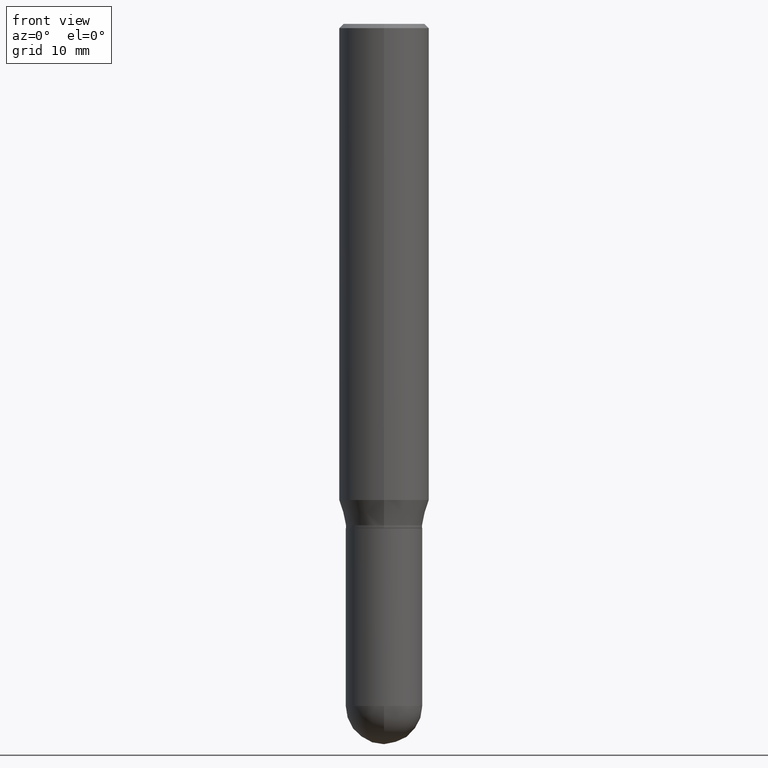
[diagram: clean part render]
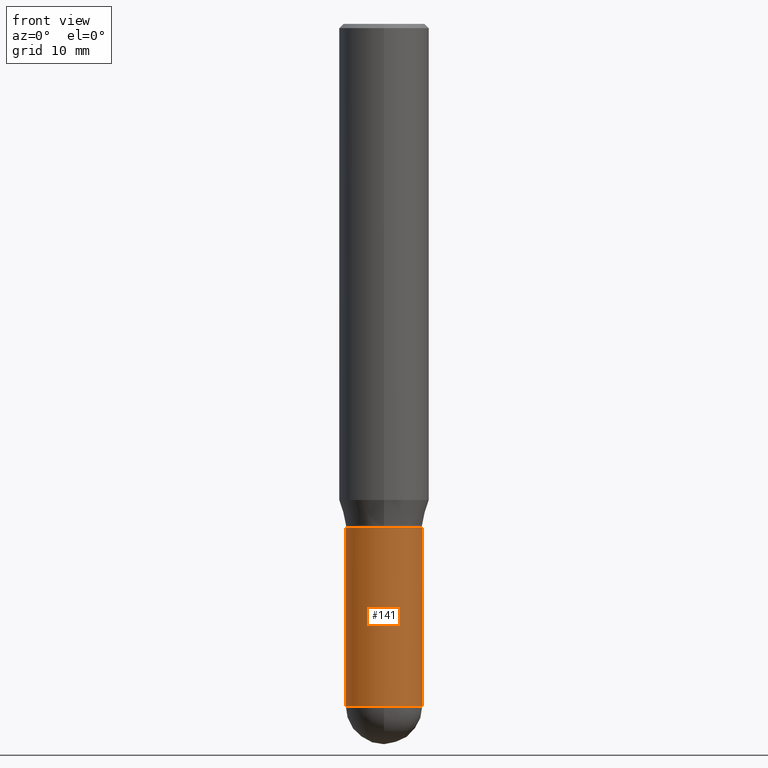
[diagram: same view with one face highlighted and labeled with its STEP entity id]
A machine part, front view. The second image highlights one B-rep face of the part: STEP entity #141.
In plain terms, the highlighted cylindrical surface (partial cylindrical patch) has radius 3.3731 mm, axis along (-0, 0, 1).
Its self-contained STEP definition (entity closure, byte-faithful):
#4 = CARTESIAN_POINT ( 'NONE',  ( 0.1328000000000000014, -7.037429786572241288E-15, -1.750000000000000222 ) ) ;
#11 = VERTEX_POINT ( 'NONE', #184 ) ;
#22 = VERTEX_POINT ( 'NONE', #457 ) ;
#25 = EDGE_LOOP ( 'NONE', ( #143, #358, #301, #480, #168 ) ) ;
#27 = AXIS2_PLACEMENT_3D ( 'NONE', #312, #382, #81 ) ;
#28 = EDGE_CURVE ( 'NONE', #219, #22, #340, .T. ) ;
#30 = DIRECTION ( 'NONE',  ( -2.445468806185136597E-29, 3.491481338843145583E-15, 1.000000000000000000 ) ) ;
#46 = DIRECTION ( 'NONE',  ( -2.445468806185136597E-29, 3.491481338843145583E-15, 1.000000000000000000 ) ) ;
#48 = CARTESIAN_POINT ( 'NONE',  ( 0.1328000000000000014, -9.273374435967362223E-16, 6.475562758257002307E-30 ) ) ;
#50 = CARTESIAN_POINT ( 'NONE',  ( -0.1328000000000000014, -6.243962731053086807E-15, -2.367199999999999971 ) ) ;
#69 = AXIS2_PLACEMENT_3D ( 'NONE', #123, #46, #82 ) ;
#75 = CARTESIAN_POINT ( 'NONE',  ( -0.1328000000000000014, 9.436007530894130566E-16, -6.532345799858513932E-30 ) ) ;
#78 = CIRCLE ( 'NONE', #181, 0.1328000000000000014 ) ;
#81 = DIRECTION ( 'NONE',  ( 1.000000000000000000, -6.982962677686266711E-15, 4.876176775795935232E-29 ) ) ;
#82 = DIRECTION ( 'NONE',  ( 1.000000000000000000, -6.982962677686263555E-15, 0.000000000000000000 ) ) ;
#123 = CARTESIAN_POINT ( 'NONE',  ( 4.279570410823989044E-29, -6.110092342975505460E-15, -1.750000000000000222 ) ) ;
#127 = DIRECTION ( 'NONE',  ( 1.000000000000000000, -6.982962677686263555E-15, 0.000000000000000000 ) ) ;
#141 = ADVANCED_FACE ( 'NONE', ( #151 ), #346, .T. ) ;
#143 = ORIENTED_EDGE ( 'NONE', *, *, #144, .F. ) ;
#144 = EDGE_CURVE ( 'NONE', #292, #11, #471, .T. ) ;
#151 = FACE_OUTER_BOUND ( 'NONE', #25, .T. ) ;
#168 = ORIENTED_EDGE ( 'NONE', *, *, #285, .F. ) ;
#178 = CARTESIAN_POINT ( 'NONE',  ( 5.788913758001455526E-29, -8.265034625309493084E-15, -2.367199999999999971 ) ) ;
#181 = AXIS2_PLACEMENT_3D ( 'NONE', #478, #395, #127 ) ;
#184 = CARTESIAN_POINT ( 'NONE',  ( -0.1328000000000000014, -6.243962731053086018E-15, -1.750000000000000222 ) ) ;
#202 = LINE ( 'NONE', #48, #373 ) ;
#210 = VERTEX_POINT ( 'NONE', #4 ) ;
#219 = VERTEX_POINT ( 'NONE', #433 ) ;
#239 = DIRECTION ( 'NONE',  ( -2.445468806185136877E-29, 3.491481338843145188E-15, 1.000000000000000000 ) ) ;
#285 = EDGE_CURVE ( 'NONE', #11, #210, #324, .T. ) ;
#292 = VERTEX_POINT ( 'NONE', #50 ) ;
#300 = EDGE_CURVE ( 'NONE', #22, #210, #202, .T. ) ;
#301 = ORIENTED_EDGE ( 'NONE', *, *, #28, .T. ) ;
#312 = CARTESIAN_POINT ( 'NONE',  ( 0.000000000000000000, 0.000000000000000000, 0.000000000000000000 ) ) ;
#324 = CIRCLE ( 'NONE', #69, 0.1328000000000000014 ) ;
#340 = CIRCLE ( 'NONE', #374, 0.1328000000000000014 ) ;
#346 = CYLINDRICAL_SURFACE ( 'NONE', #27, 0.1328000000000000014 ) ;
#358 = ORIENTED_EDGE ( 'NONE', *, *, #381, .T. ) ;
#373 = VECTOR ( 'NONE', #239, 39.37007874015748143 ) ;
#374 = AXIS2_PLACEMENT_3D ( 'NONE', #178, #30, #413 ) ;
#381 = EDGE_CURVE ( 'NONE', #292, #219, #78, .T. ) ;
#382 = DIRECTION ( 'NONE',  ( -2.445468806185136597E-29, 3.491481338843145583E-15, 1.000000000000000000 ) ) ;
#395 = DIRECTION ( 'NONE',  ( -2.445468806185136597E-29, 3.491481338843145583E-15, 1.000000000000000000 ) ) ;
#413 = DIRECTION ( 'NONE',  ( 1.000000000000000000, -6.982962677686263555E-15, 0.000000000000000000 ) ) ;
#433 = CARTESIAN_POINT ( 'NONE',  ( -9.436007530893550753E-16, -0.1328000000000082725, -2.367199999999999083 ) ) ;
#457 = CARTESIAN_POINT ( 'NONE',  ( 0.1328000000000000014, -8.114900927739235889E-15, -2.367199999999999971 ) ) ;
#471 = LINE ( 'NONE', #75, #477 ) ;
#477 = VECTOR ( 'NONE', #510, 39.37007874015748143 ) ;
#478 = CARTESIAN_POINT ( 'NONE',  ( 5.788913758001455526E-29, -8.265034625309493084E-15, -2.367199999999999971 ) ) ;
#480 = ORIENTED_EDGE ( 'NONE', *, *, #300, .T. ) ;
#510 = DIRECTION ( 'NONE',  ( -2.445468806185136877E-29, 3.491481338843145188E-15, 1.000000000000000000 ) ) ;